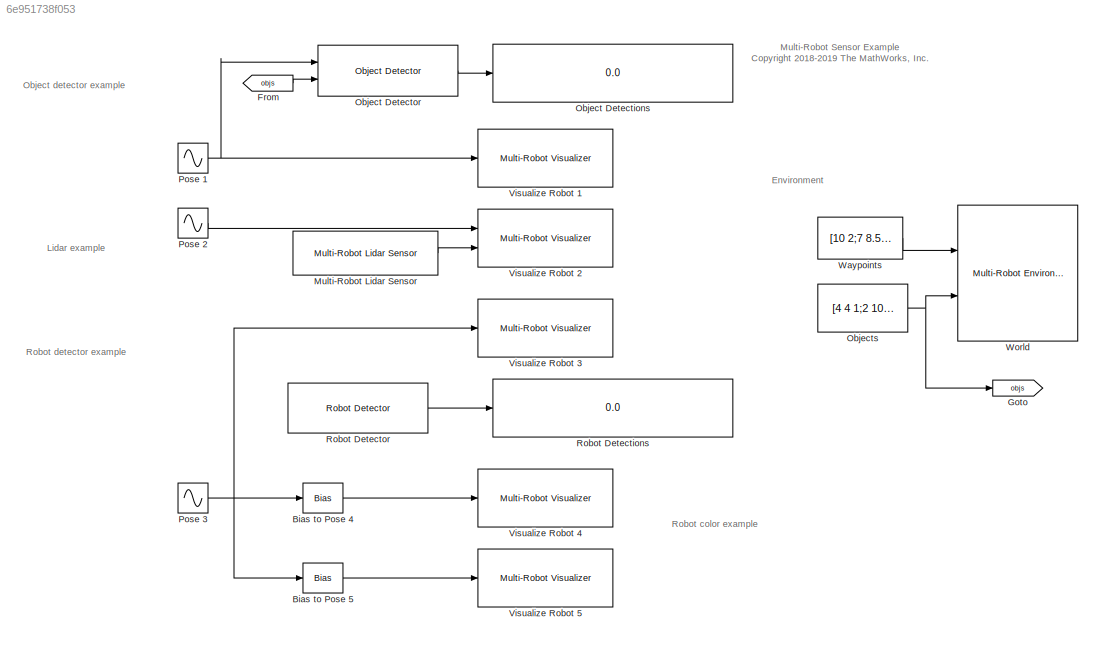
MODEL slx_6e951738f053
KIND model
CONFIG AbsTol = auto
CONFIG EnableMultiTasking = off
CONFIG FixedStep = sampleTime
CONFIG MaxStep = auto
CONFIG MinStep = auto
CONFIG PreLoadFcn = % Simulation parameters\nload exampleMap\nsampleTime = 0.05;\n\n% Lidar parameters\nsensorOffset = [0,0];\nscanAngles = [-3*pi/8;-pi/4;-pi/8;0;pi/8;pi/4;3*pi/8];\nmaxRange = 6;\n\n% Object Detector parameters\nobjX = 4;\nobjY = 4;\ntargetLabel = 1;\nobjLabel = 1;\nobjDetectorOffset = [0 0];\nobjDetectorAngle = 0;\nobjDetectorFOV = pi/3;\nobjDetectorRange = 5;\nobjDetectorColors = [1 0 0;0 1 0;0 0 1];\nobjDetectorMax...<+9ch>
CONFIG RelTol = 1e-3
CONFIG SampleTimeConstraint = Unconstrained
CONFIG Solver = FixedStepAuto
CONFIG SolverName = FixedStepAuto
CONFIG StartTime = 0.0
CONFIG StopTime = 30
BLOCK [Bias] Bias to Pose 4
  Bias = 1
  SaturateOnIntegerOverflow = off
BLOCK [Bias] Bias to Pose 5
  Bias = 2
  SaturateOnIntegerOverflow = off
BLOCK [From] From
  GotoTag = objs
BLOCK [Goto] Goto
  GotoTag = objs
BLOCK [Reference] Multi-Robot Lidar Sensor  REF=mobileRoboticsLib/Environments/Multi-Robot Lidar Sensor
  Ports = [0, 1]
  SourceBlock = mobileRoboticsLib/Environments/Multi-Robot Lidar Sensor
  SourceProductName = Mobile Robotics Simulation Toolbox
  SourceType = Multi-Robot Lidar Sensor
BLOCK [Display] Object Detections
  Decimation = 1
  Ports = [1]
BLOCK [Reference] Object Detector  REF=mobileRoboticsLib/Environments/Object Detector
  Ports = [2, 1]
  SourceBlock = mobileRoboticsLib/Environments/Object Detector
  SourceProductName = Mobile Robotics Simulation Toolbox
  SourceType = ObjectDetector
BLOCK [Constant] Objects
  Value = [4 4 1;2 10 2;4.5 3.5 3]
BLOCK [Sin] Pose 1
  Amplitude = [1;1.5;pi/4]
  Bias = [2;2;0]
  Phase = [0;pi/2;0]
  Ports = [0, 1]
  SampleTime = sampleTime
  Samples = 200
  SineType = Sample based
BLOCK [Sin] Pose 2
  Amplitude = [-1.5;1;2*pi/3]
  Bias = [10;10;-pi/3]
  Phase = [0;pi/2;0]
  Ports = [0, 1]
  SampleTime = sampleTime
  Samples = 150
  SineType = Sample based
BLOCK [Sin] Pose 3
  Amplitude = [-2;0.5;pi/2]
  Bias = [7.75;3;0]
  Offset = [0;50;25]
  Phase = [-pi/4;0;pi/3]
  Ports = [0, 1]
  SampleTime = sampleTime
  Samples = 160
  SineType = Sample based
BLOCK [Display] Robot Detections
  Decimation = 1
  Ports = [1]
BLOCK [Reference] Robot Detector  REF=mobileRoboticsLib/Environments/Robot Detector
  Ports = [0, 1]
  SourceBlock = mobileRoboticsLib/Environments/Robot Detector
  SourceProductName = Mobile Robotics Simulation Toolbox
  SourceType = Robot Detector
BLOCK [Reference] Visualize Robot 1  REF=mobileRoboticsLib/Environments/Multi-Robot Visualizer
  Ports = [1]
  SourceBlock = mobileRoboticsLib/Environments/Multi-Robot Visualizer
  SourceProductName = Mobile Robotics Simulation Toolbox
  SourceType = Multi-Robot Visualizer
BLOCK [Reference] Visualize Robot 2  REF=mobileRoboticsLib/Environments/Multi-Robot Visualizer
  Ports = [2]
  SourceBlock = mobileRoboticsLib/Environments/Multi-Robot Visualizer
  SourceProductName = Mobile Robotics Simulation Toolbox
  SourceType = Multi-Robot Visualizer
BLOCK [Reference] Visualize Robot 3  REF=mobileRoboticsLib/Environments/Multi-Robot Visualizer
  Ports = [1]
  SourceBlock = mobileRoboticsLib/Environments/Multi-Robot Visualizer
  SourceProductName = Mobile Robotics Simulation Toolbox
  SourceType = Multi-Robot Visualizer
BLOCK [Reference] Visualize Robot 4  REF=mobileRoboticsLib/Environments/Multi-Robot Visualizer
  Ports = [1]
  SourceBlock = mobileRoboticsLib/Environments/Multi-Robot Visualizer
  SourceProductName = Mobile Robotics Simulation Toolbox
  SourceType = Multi-Robot Visualizer
BLOCK [Reference] Visualize Robot 5  REF=mobileRoboticsLib/Environments/Multi-Robot Visualizer
  Ports = [1]
  SourceBlock = mobileRoboticsLib/Environments/Multi-Robot Visualizer
  SourceProductName = Mobile Robotics Simulation Toolbox
  SourceType = Multi-Robot Visualizer
BLOCK [Constant] Waypoints
  Value = [10 2;7 8.5;2 4]
BLOCK [Reference] World  REF=mobileRoboticsLib/Environments/Multi-Robot Environment
  Ports = [2]
  SourceBlock = mobileRoboticsLib/Environments/Multi-Robot Environment
  SourceProductName = Mobile Robotics Simulation Toolbox
  SourceType = Multi-Robot Environment
ANNOTATION (root): Lidar example
ANNOTATION (root): Object detector example
ANNOTATION (root): Robot color example
ANNOTATION (root): Robot detector example
ANNOTATION (root): Multi-Robot Sensor Example <copyright redacted>
ANNOTATION (root): Environment
LINE Bias to Pose 4:1 -> Visualize Robot 4:1
LINE Bias to Pose 5:1 -> Visualize Robot 5:1
LINE From:1 -> Object Detector:2
LINE Multi-Robot Lidar Sensor:1 -> Visualize Robot 2:2
LINE Object Detector:1 -> Object Detections:1
NET Objects:1 -> Goto:1, World:2
NET Pose 1:1 -> Object Detector:1, Visualize Robot 1:1
LINE Pose 2:1 -> Visualize Robot 2:1
NET Pose 3:1 -> Bias to Pose 4:1, Bias to Pose 5:1, Visualize Robot 3:1
LINE Robot Detector:1 -> Robot Detections:1
LINE Waypoints:1 -> World:1
note: NET lines group one-source signal fan-out (src -> all destinations, sorted); 1:1 wires keep LINE
